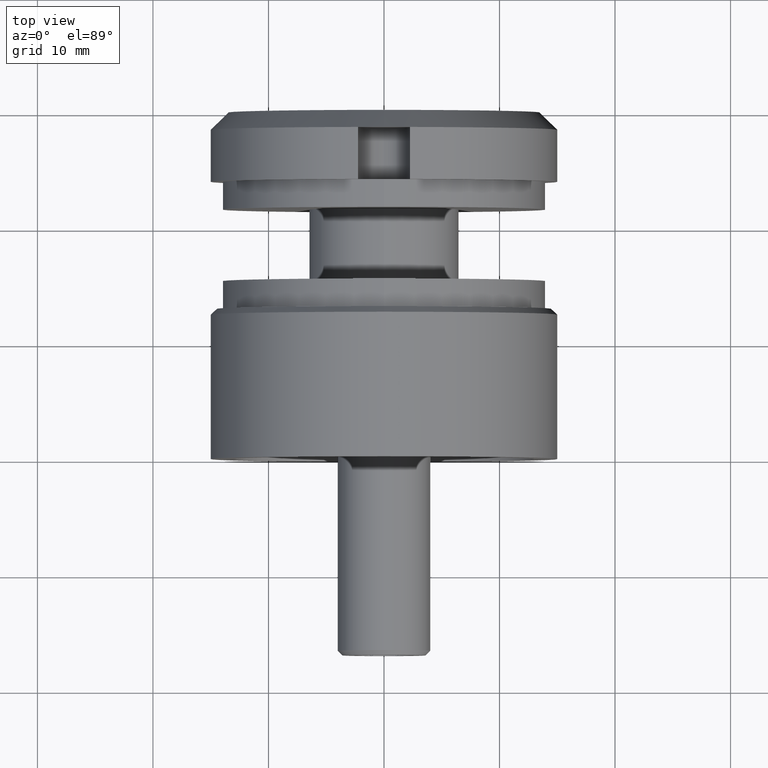
[diagram: clean part render]
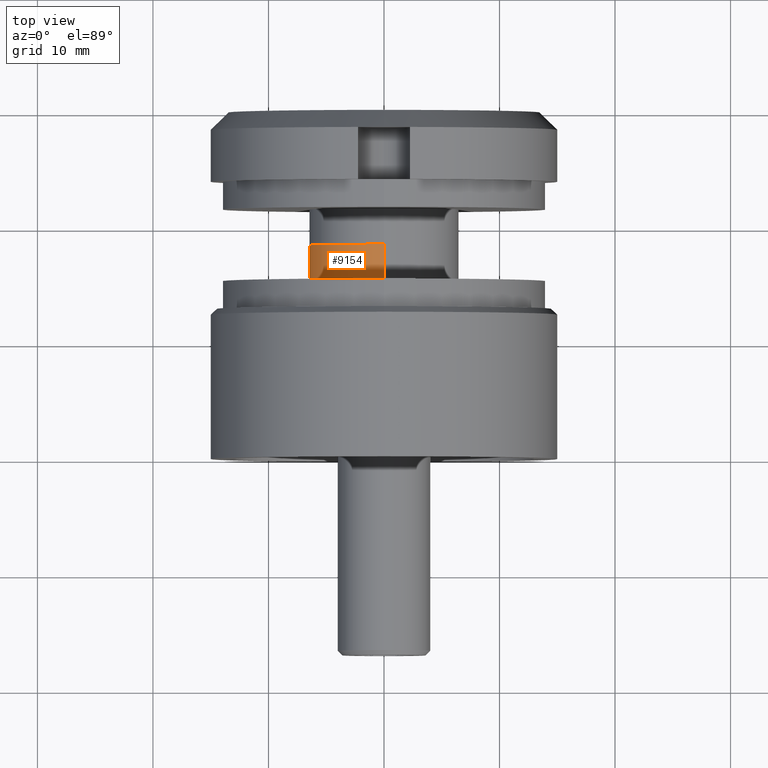
[diagram: same view with one face highlighted and labeled with its STEP entity id]
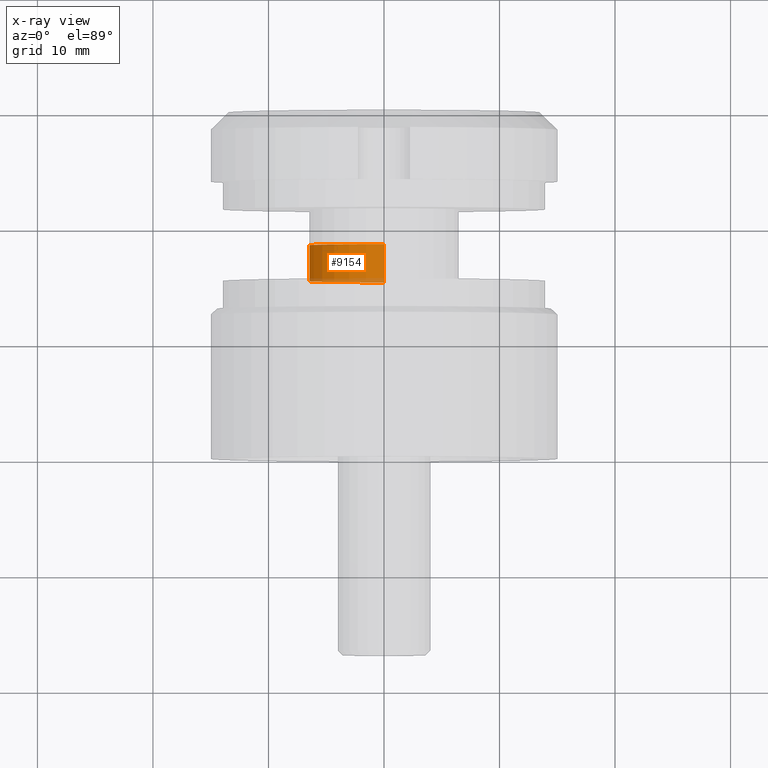
[diagram: x-ray of the same camera — body ghosted, the highlighted face saturated]
A machine part, top view. The second image highlights one B-rep face of the part: STEP entity #9154.
The next image is the same camera in x-ray: the body ghosted, the highlighted face saturated — about 10% of this face is hidden behind the body in this view.
In plain terms, the highlighted cylindrical surface (partial cylindrical patch) has radius 6.5 mm, axis along (-0, -1, -0).
Its self-contained STEP definition (entity closure, byte-faithful):
#378 = DIRECTION ( 'NONE',  ( -0.000000000000000000, -1.000000000000000000, -0.000000000000000000 ) ) ;
#1336 = DIRECTION ( 'NONE',  ( -0.000000000000000000, -1.000000000000000000, -0.000000000000000000 ) ) ;
#4149 = DIRECTION ( 'NONE',  ( 0.000000000000000000, 0.000000000000000000, -1.000000000000000000 ) ) ;
#4366 = DIRECTION ( 'NONE',  ( -0.000000000000000000, -1.000000000000000000, -0.000000000000000000 ) ) ;
#4420 = CIRCLE ( 'NONE', #9655, 6.499999999999999112 ) ;
#4568 = CARTESIAN_POINT ( 'NONE',  ( 0.000000000000000000, 5.500000000000000000, -6.499999999999999112 ) ) ;
#4636 = LINE ( 'NONE', #5098, #12057 ) ;
#5098 = CARTESIAN_POINT ( 'NONE',  ( 0.000000000000000000, 0.000000000000000000, -6.499999999999999112 ) ) ;
#5769 = CARTESIAN_POINT ( 'NONE',  ( 7.960204194457796463E-16, 2.399999999999999023, 6.500000000000000888 ) ) ;
#5970 = FACE_OUTER_BOUND ( 'NONE', #8898, .T. ) ;
#6485 = ORIENTED_EDGE ( 'NONE', *, *, #12557, .F. ) ;
#6591 = CARTESIAN_POINT ( 'NONE',  ( 0.000000000000000000, 2.399999999999999023, 0.000000000000000000 ) ) ;
#7603 = VERTEX_POINT ( 'NONE', #5769 ) ;
#7630 = CARTESIAN_POINT ( 'NONE',  ( 0.000000000000000000, 5.500000000000000000, 0.000000000000000000 ) ) ;
#7637 = CYLINDRICAL_SURFACE ( 'NONE', #9738, 6.499999999999999112 ) ;
#7751 = ORIENTED_EDGE ( 'NONE', *, *, #9498, .T. ) ;
#7970 = EDGE_CURVE ( 'NONE', #7603, #13804, #8634, .T. ) ;
#8210 = ORIENTED_EDGE ( 'NONE', *, *, #11986, .T. ) ;
#8634 = CIRCLE ( 'NONE', #8999, 6.500000000000000000 ) ;
#8854 = VERTEX_POINT ( 'NONE', #4568 ) ;
#8898 = EDGE_LOOP ( 'NONE', ( #6485, #8210, #7751, #11520 ) ) ;
#8999 = AXIS2_PLACEMENT_3D ( 'NONE', #6591, #4366, #15077 ) ;
#9154 = ADVANCED_FACE ( 'NONE', ( #5970 ), #7637, .T. ) ;
#9498 = EDGE_CURVE ( 'NONE', #8854, #13804, #4636, .T. ) ;
#9655 = AXIS2_PLACEMENT_3D ( 'NONE', #7630, #378, #4149 ) ;
#9738 = AXIS2_PLACEMENT_3D ( 'NONE', #9841, #1336, #12559 ) ;
#9841 = CARTESIAN_POINT ( 'NONE',  ( 0.000000000000000000, 0.000000000000000000, 0.000000000000000000 ) ) ;
#10963 = DIRECTION ( 'NONE',  ( -0.000000000000000000, -1.000000000000000000, -0.000000000000000000 ) ) ;
#11520 = ORIENTED_EDGE ( 'NONE', *, *, #7970, .F. ) ;
#11836 = LINE ( 'NONE', #12142, #14655 ) ;
#11986 = EDGE_CURVE ( 'NONE', #15358, #8854, #4420, .T. ) ;
#12057 = VECTOR ( 'NONE', #13442, 1000.000000000000000 ) ;
#12142 = CARTESIAN_POINT ( 'NONE',  ( 7.960204194457794491E-16, 0.000000000000000000, 6.499999999999999112 ) ) ;
#12557 = EDGE_CURVE ( 'NONE', #15358, #7603, #11836, .T. ) ;
#12559 = DIRECTION ( 'NONE',  ( 0.000000000000000000, 0.000000000000000000, -1.000000000000000000 ) ) ;
#13442 = DIRECTION ( 'NONE',  ( -0.000000000000000000, -1.000000000000000000, -0.000000000000000000 ) ) ;
#13804 = VERTEX_POINT ( 'NONE', #15369 ) ;
#14260 = CARTESIAN_POINT ( 'NONE',  ( 7.960204194457794491E-16, 5.500000000000000000, 6.499999999999999112 ) ) ;
#14655 = VECTOR ( 'NONE', #10963, 1000.000000000000000 ) ;
#15077 = DIRECTION ( 'NONE',  ( 0.000000000000000000, 0.000000000000000000, -1.000000000000000000 ) ) ;
#15358 = VERTEX_POINT ( 'NONE', #14260 ) ;
#15369 = CARTESIAN_POINT ( 'NONE',  ( 0.000000000000000000, 2.399999999999999023, -6.500000000000000000 ) ) ;